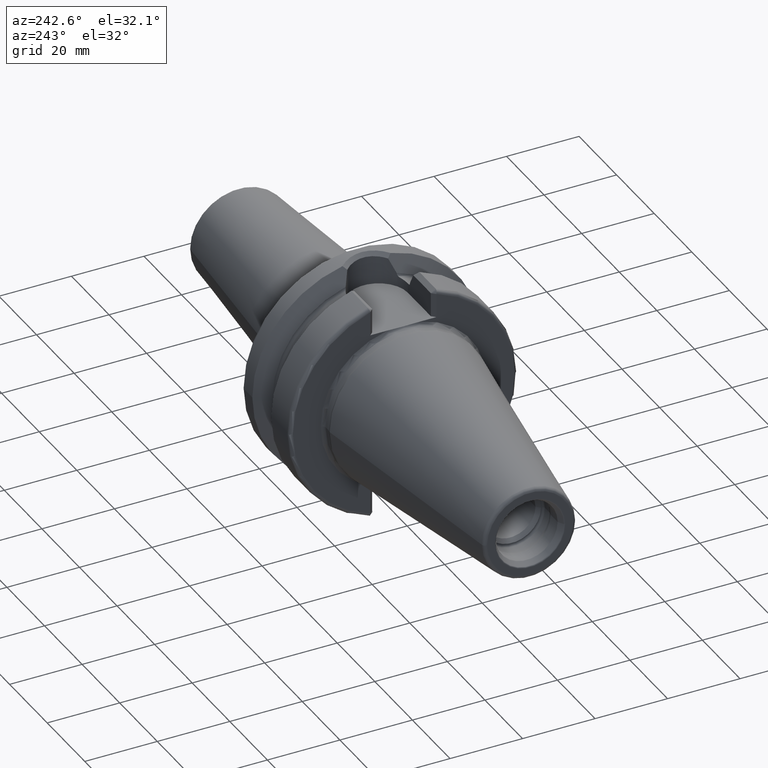
[diagram: clean part render]
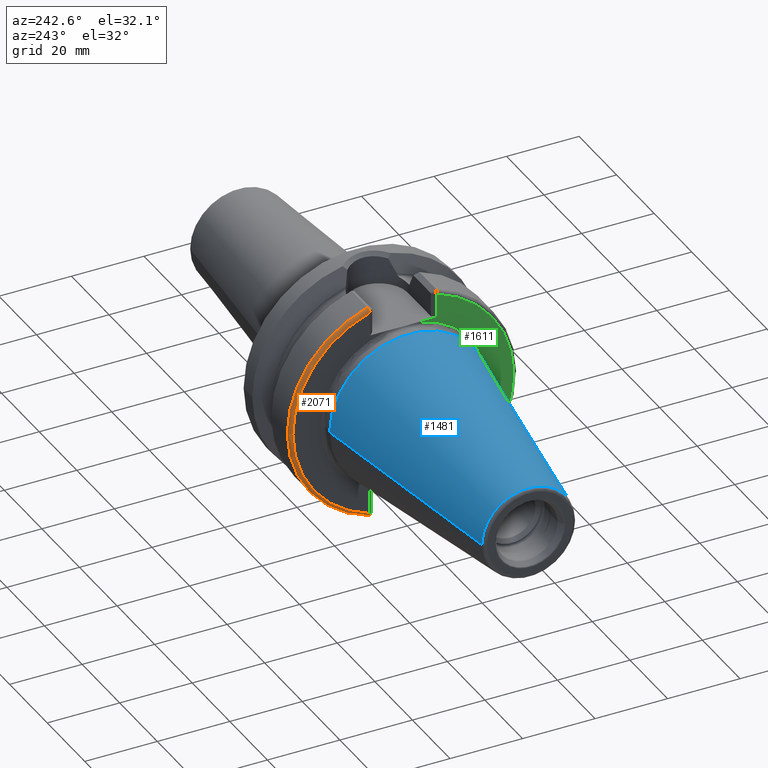
[diagram: same view with three faces highlighted in distinct colors, each labeled with its STEP entity id]
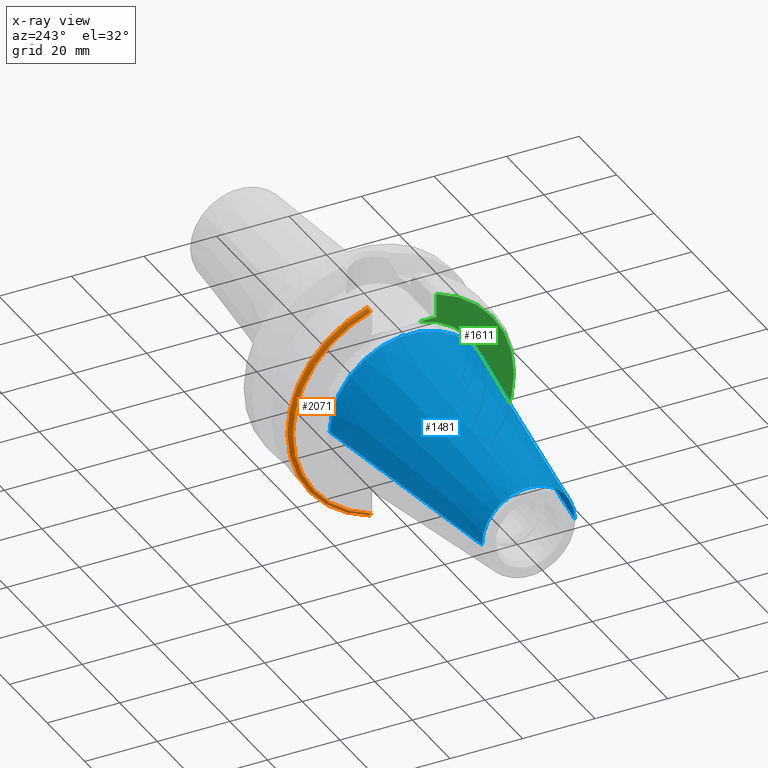
[diagram: x-ray of the same camera — body ghosted, the three highlighted faces saturated]
A machine part, auxiliary view with three faces highlighted in distinct colors.
The next image is the same camera in x-ray (body ghosted, the three faces saturated) — at least one of them is partly hidden behind the body in this view.
Their STEP definitions:

[orange] entity #2071 — the highlighted toroidal blend (fillet) surface has major radius 30.4875 mm and minor (blend) radius 1 mm.
#228=CARTESIAN_POINT('',(3.E0,0.E0,0.E0));
#229=DIRECTION('',(-1.E0,0.E0,0.E0));
#230=DIRECTION('',(0.E0,2.983189831898E-1,9.544662300305E-1));
#231=AXIS2_PLACEMENT_3D('',#228,#229,#230);
#576=CARTESIAN_POINT('',(2.999999997734E0,9.052776400559E0,-3.015808496187E1));
#577=CARTESIAN_POINT('',(2.931534903981E0,9.052812497807E0,-3.015807412629E1));
#578=CARTESIAN_POINT('',(2.790930333101E0,9.053893030365E0,-3.014309601841E1));
#579=CARTESIAN_POINT('',(2.577680867074E0,9.059670739939E0,-3.006831316068E1));
#580=CARTESIAN_POINT('',(2.379122961844E0,9.068290399113E0,-2.993980731602E1));
#581=CARTESIAN_POINT('',(2.211396248706E0,9.078496481978E0,-2.976350519345E1));
#582=CARTESIAN_POINT('',(2.087184923784E0,9.087603638745E0,-2.955183251506E1));
#583=CARTESIAN_POINT('',(2.014374036950E0,9.093739351075E0,-2.932192619109E1));
#584=CARTESIAN_POINT('',(1.999985784732E0,9.095112793048E0,-2.917217137670E1));
#585=CARTESIAN_POINT('',(1.999985784732E0,9.094985783206E0,-2.909928820385E1));
#587=CARTESIAN_POINT('',(3.E0,9.095027762304E0,2.909928051092E1));
#588=DIRECTION('',(0.E0,9.544659454175E-1,-2.983198938025E-1));
#589=DIRECTION('',(-1.E0,-4.138911435803E-12,-1.324096388089E-11));
#590=AXIS2_PLACEMENT_3D('',#587,#588,#589);
#592=CARTESIAN_POINT('',(2.E0,0.E0,0.E0));
#593=DIRECTION('',(-1.E0,0.E0,0.E0));
#594=DIRECTION('',(0.E0,2.983190614061E-1,9.544662055839E-1));
#595=AXIS2_PLACEMENT_3D('',#592,#593,#594);
#1358=CARTESIAN_POINT('',(2.E0,9.095027762300E0,2.909928051090E1));
#1359=CARTESIAN_POINT('',(3.E0,9.393347656107E0,3.005374645633E1));
#1360=VERTEX_POINT('',#1358);
#1361=VERTEX_POINT('',#1359);
#1372=CARTESIAN_POINT('',(1.999985784732E0,9.094985783206E0,-2.909928820385E1));
#1374=VERTEX_POINT('',#1372);
#1376=VERTEX_POINT('',#576);
#2058=CARTESIAN_POINT('',(3.E0,0.E0,0.E0));
#2059=DIRECTION('',(1.E0,0.E0,0.E0));
#2060=DIRECTION('',(0.E0,-1.E0,0.E0));
#2061=AXIS2_PLACEMENT_3D('',#2058,#2059,#2060);
#2062=TOROIDAL_SURFACE('',#2061,3.04875E1,1.E0);
#2064=ORIENTED_EDGE('',*,*,#2063,.F.);
#2065=ORIENTED_EDGE('',*,*,#1740,.F.);
#2067=ORIENTED_EDGE('',*,*,#2066,.F.);
#2068=ORIENTED_EDGE('',*,*,#1577,.T.);
#2069=EDGE_LOOP('',(#2064,#2065,#2067,#2068));
#2070=FACE_OUTER_BOUND('',#2069,.F.);
#2071=ADVANCED_FACE('',(#2070),#2062,.T.);
#232=CIRCLE('',#231,3.14875E1);
#586=B_SPLINE_CURVE_WITH_KNOTS('',3,(#576,#577,#578,#579,#580,#581,#582,#583,
#584,#585),.UNSPECIFIED.,.F.,.F.,(4,1,1,1,1,1,1,4),(0.E0,1.428571428571E-1,
2.857142857143E-1,4.285714285714E-1,5.714285714286E-1,7.142857142857E-1,
8.571428571429E-1,1.E0),.UNSPECIFIED.);
#591=CIRCLE('',#590,1.E0);
#596=CIRCLE('',#595,3.04875E1);
#1577=EDGE_CURVE('',#1360,#1374,#596,.T.);
#1740=EDGE_CURVE('',#1361,#1376,#232,.T.);
#2063=EDGE_CURVE('',#1376,#1374,#586,.T.);
#2066=EDGE_CURVE('',#1360,#1361,#591,.T.);

[blue] entity #1481 — the highlighted conical surface has half-angle 8.298 deg.
#37=CARTESIAN_POINT('',(-6.454431866917E1,0.E0,0.E0));
#38=DIRECTION('',(1.E0,0.E0,0.E0));
#39=DIRECTION('',(0.E0,1.E0,0.E0));
#40=AXIS2_PLACEMENT_3D('',#37,#38,#39);
#42=CARTESIAN_POINT('',(-1.266732031557E0,0.E0,0.E0));
#43=DIRECTION('',(1.E0,0.E0,0.E0));
#44=DIRECTION('',(0.E0,1.E0,0.E0));
#45=AXIS2_PLACEMENT_3D('',#42,#43,#44);
#47=DIRECTION('',(-9.895312636440E-1,-1.443186691705E-1,0.E0));
#48=VECTOR('',#47,6.394703124850E1);
#49=CARTESIAN_POINT('',(-1.266732031557E0,2.204025284980E1,0.E0));
#50=LINE('',#49,#48);
#51=DIRECTION('',(-9.895312636440E-1,1.443186691705E-1,0.E0));
#52=VECTOR('',#51,6.394703124850E1);
#53=CARTESIAN_POINT('',(-1.266732031557E0,-2.204025284980E1,0.E0));
#54=LINE('',#53,#52);
#1170=CARTESIAN_POINT('',(-6.454431866917E1,1.281150240261E1,0.E0));
#1172=VERTEX_POINT('',#1170);
#1174=CARTESIAN_POINT('',(-6.454431866917E1,-1.281150240261E1,0.E0));
#1176=VERTEX_POINT('',#1174);
#1389=CARTESIAN_POINT('',(-1.266732031557E0,2.204025284980E1,0.E0));
#1390=VERTEX_POINT('',#1389);
#1391=CARTESIAN_POINT('',(-1.266732031557E0,-2.204025284980E1,0.E0));
#1392=VERTEX_POINT('',#1391);
#1467=CARTESIAN_POINT('',(-3.290552535036E1,0.E0,0.E0));
#1468=DIRECTION('',(1.E0,0.E0,0.E0));
#1469=DIRECTION('',(0.E0,-1.E0,0.E0));
#1470=AXIS2_PLACEMENT_3D('',#1467,#1468,#1469);
#1471=CONICAL_SURFACE('',#1470,1.742587762621E1,8.297826828206E0);
#1473=ORIENTED_EDGE('',*,*,#1472,.F.);
#1475=ORIENTED_EDGE('',*,*,#1474,.T.);
#1477=ORIENTED_EDGE('',*,*,#1476,.T.);
#1478=ORIENTED_EDGE('',*,*,#1460,.F.);
#1479=EDGE_LOOP('',(#1473,#1475,#1477,#1478));
#1480=FACE_OUTER_BOUND('',#1479,.F.);
#1481=ADVANCED_FACE('',(#1480),#1471,.T.);
#41=CIRCLE('',#40,1.281150240261E1);
#46=CIRCLE('',#45,2.204025284980E1);
#1460=EDGE_CURVE('',#1172,#1176,#41,.T.);
#1472=EDGE_CURVE('',#1390,#1172,#50,.T.);
#1474=EDGE_CURVE('',#1390,#1392,#46,.T.);
#1476=EDGE_CURVE('',#1392,#1176,#54,.T.);

[green] entity #1611 — the highlighted planar face has unit normal (1, 0, 0).
#111=CARTESIAN_POINT('',(2.E0,0.E0,0.E0));
#112=DIRECTION('',(-1.E0,0.E0,0.E0));
#113=DIRECTION('',(0.E0,-1.918678763451E-1,-9.814207650273E-1));
#114=AXIS2_PLACEMENT_3D('',#111,#112,#113);
#135=DIRECTION('',(-2.137863157207E-6,2.138092595446E-6,-9.999999999954E-1));
#136=VECTOR('',#135,6.649288203879E0);
#137=CARTESIAN_POINT('',(2.E0,-9.095E0,-2.245E1));
#138=LINE('',#137,#136);
#139=DIRECTION('',(4.462834027234E-6,-4.463945838797E-6,-9.999999999801E-1));
#140=VECTOR('',#139,6.649296399172E0);
#141=CARTESIAN_POINT('',(1.999970325294E0,-9.094970317901E0,2.909929639904E1));
#142=LINE('',#141,#140);
#597=CARTESIAN_POINT('',(1.999985784732E0,-9.094985783206E0,-2.909928820385E1));
#608=CARTESIAN_POINT('',(2.E0,0.E0,0.E0));
#609=DIRECTION('',(-1.E0,0.E0,0.E0));
#610=DIRECTION('',(0.E0,-2.983190208830E-1,-9.544662182495E-1));
#611=AXIS2_PLACEMENT_3D('',#608,#609,#610);
#684=DIRECTION('',(0.E0,1.E0,0.E0));
#685=VECTOR('',#684,4.706022328605E0);
#686=CARTESIAN_POINT('',(2.E0,-9.095E0,2.245E1));
#687=LINE('',#686,#685);
#725=CARTESIAN_POINT('',(2.E0,0.E0,0.E0));
#726=DIRECTION('',(1.E0,0.E0,0.E0));
#727=DIRECTION('',(0.E0,-1.918678763451E-1,9.814207650273E-1));
#728=AXIS2_PLACEMENT_3D('',#725,#726,#727);
#750=DIRECTION('',(0.E0,-1.E0,0.E0));
#751=VECTOR('',#750,4.706022328605E0);
#752=CARTESIAN_POINT('',(2.E0,-4.388977671395E0,-2.245E1));
#753=LINE('',#752,#751);
#1248=CARTESIAN_POINT('',(2.E0,-2.2875E1,0.E0));
#1250=VERTEX_POINT('',#1248);
#1314=CARTESIAN_POINT('',(2.E0,-4.388977671395E0,2.245E1));
#1315=VERTEX_POINT('',#1314);
#1322=CARTESIAN_POINT('',(2.E0,-4.388977671395E0,-2.245E1));
#1323=VERTEX_POINT('',#1322);
#1352=CARTESIAN_POINT('',(1.999970325294E0,-9.094970317901E0,2.909929639904E1));
#1353=CARTESIAN_POINT('',(2.E0,-9.095E0,2.245E1));
#1354=VERTEX_POINT('',#1352);
#1355=VERTEX_POINT('',#1353);
#1377=VERTEX_POINT('',#597);
#1379=CARTESIAN_POINT('',(2.E0,-9.095E0,-2.245E1));
#1380=VERTEX_POINT('',#1379);
#1591=CARTESIAN_POINT('',(2.E0,0.E0,0.E0));
#1592=DIRECTION('',(1.E0,0.E0,0.E0));
#1593=DIRECTION('',(0.E0,-1.E0,0.E0));
#1594=AXIS2_PLACEMENT_3D('',#1591,#1592,#1593);
#1595=PLANE('',#1594);
#1597=ORIENTED_EDGE('',*,*,#1596,.F.);
#1599=ORIENTED_EDGE('',*,*,#1598,.F.);
#1600=ORIENTED_EDGE('',*,*,#1563,.T.);
#1602=ORIENTED_EDGE('',*,*,#1601,.F.);
#1604=ORIENTED_EDGE('',*,*,#1603,.F.);
#1606=ORIENTED_EDGE('',*,*,#1605,.F.);
#1608=ORIENTED_EDGE('',*,*,#1607,.F.);
#1609=EDGE_LOOP('',(#1597,#1599,#1600,#1602,#1604,#1606,#1608));
#1610=FACE_OUTER_BOUND('',#1609,.F.);
#1611=ADVANCED_FACE('',(#1610),#1595,.F.);
#115=CIRCLE('',#114,2.2875E1);
#612=CIRCLE('',#611,3.04875E1);
#729=CIRCLE('',#728,2.2875E1);
#1563=EDGE_CURVE('',#1323,#1250,#115,.T.);
#1596=EDGE_CURVE('',#1380,#1377,#138,.T.);
#1598=EDGE_CURVE('',#1323,#1380,#753,.T.);
#1601=EDGE_CURVE('',#1315,#1250,#729,.T.);
#1603=EDGE_CURVE('',#1355,#1315,#687,.T.);
#1605=EDGE_CURVE('',#1354,#1355,#142,.T.);
#1607=EDGE_CURVE('',#1377,#1354,#612,.T.);